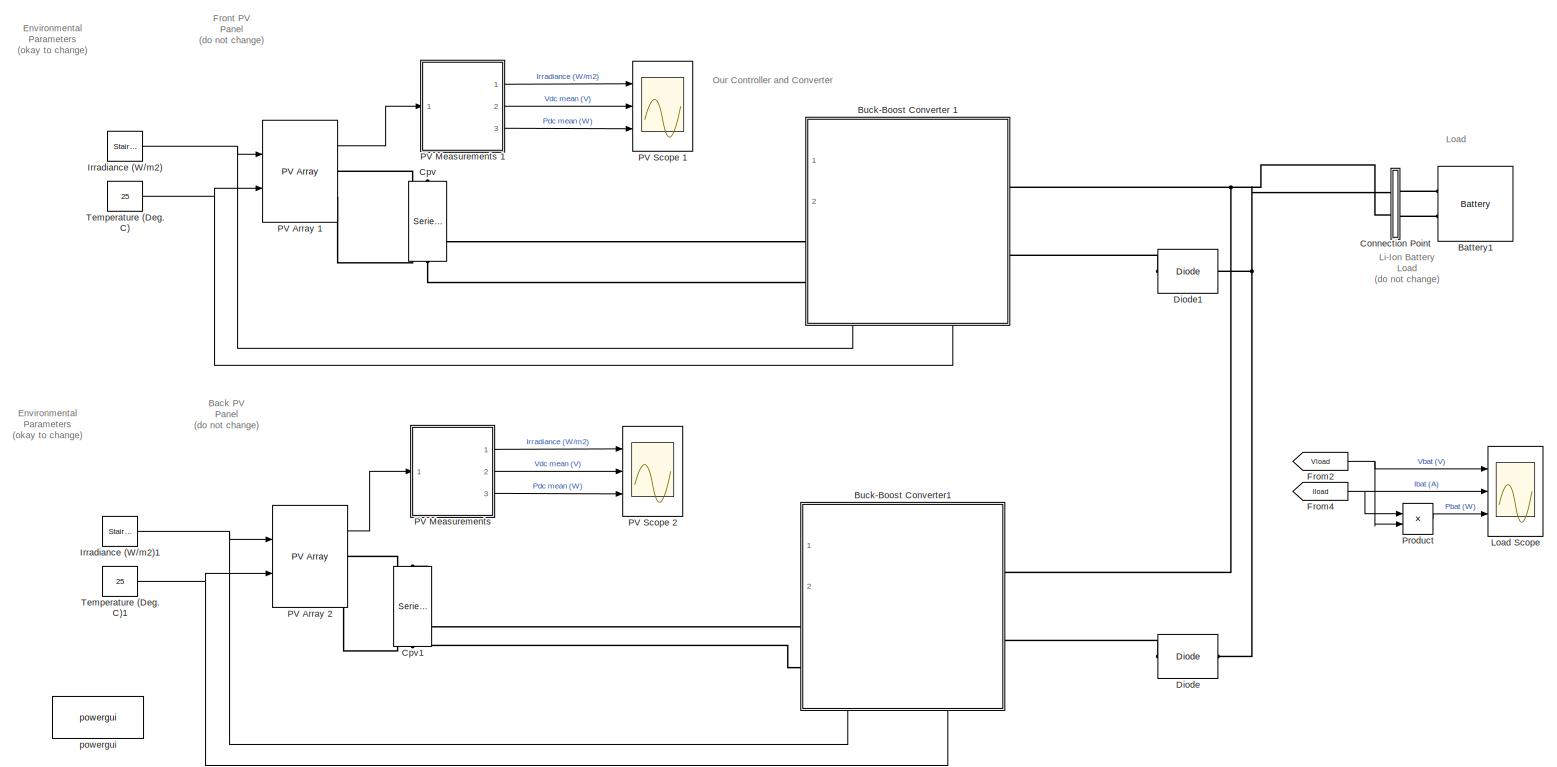
[diagram: root canvas - part 1/1, most of the canvas]
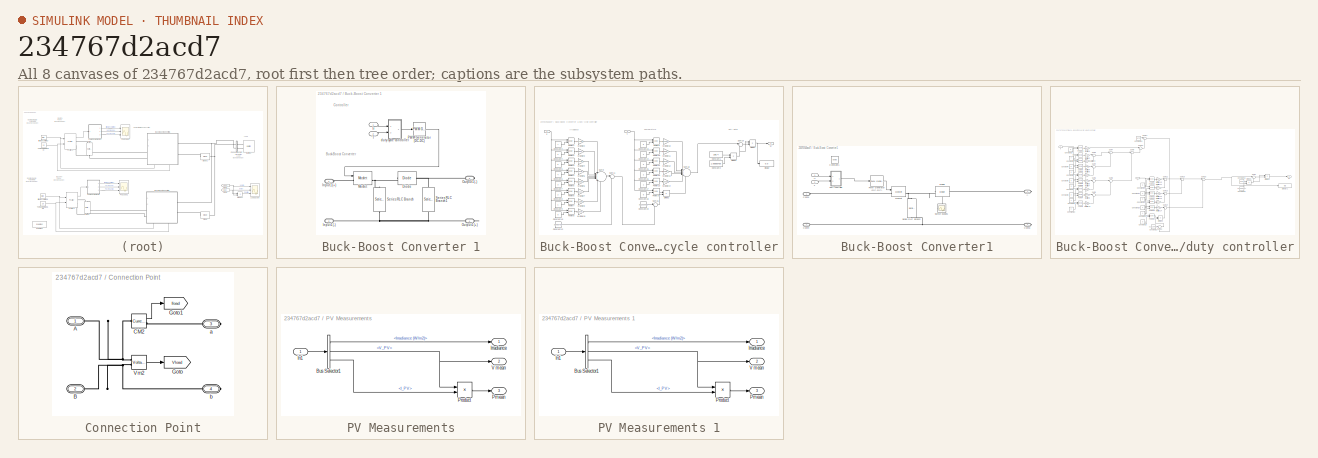
[diagram: thumbnail index - all 8 canvases of the model, root first then tree order]
MODEL slx_234767d2acd7
KIND model
CONFIG AbsTol = auto
CONFIG EnableMultiTasking = off
CONFIG FixedStep = auto
CONFIG InitFcn = %\nFc=3780;                          % PWM Carrier frequency (Hz) \nTs_Power=1/Fc/200;         % Simscape Power Systems sample time (s)\nTs_Control=20*Ts_Power;  % Inverter Control system sample time (s)
CONFIG MaxStep = auto
CONFIG MinStep = auto
CONFIG PreLoadFcn = %\nFc=3780;                          % PWM Carrier frequency (Hz) \nTs_Power=1/Fc/200;         % Simscape Power Systems sample time (s)\nTs_Control=20*Ts_Power;  % Inverter Control system sample time (s)
CONFIG RelTol = 1e-3
CONFIG SampleTimeConstraint = Unconstrained
CONFIG SolverName = FixedStepDiscrete
CONFIG StartTime = 0.0
CONFIG StopTime = 0.25
BLOCK [Reference] Battery1  REF=spsBatteryLib/Battery
  Ports = [0, 1, 0, 0, 0, 2]
  SourceBlock = spsBatteryLib/Battery
  SourceProductBaseCode = PS
  SourceType = Battery
BLOCK [SubSystem] Buck-Boost Converter 1
  PortSchema = {"entries":[{"content":{"sides":[{"content":{"connectorIds":["LConn1","LConn2"]},"type":"ConnectorPlacement.EquallySpacedRectSide","uuid":"71107f47-ce51-452e-9179-51f8038779c5"},{"content":{"connectorIds":["RConn1","RConn2"],"side":"RIGHT"},"type":"ConnectorPlacement.EquallySpacedRectSide","uuid":"312b1ac5-e0b8-4246-b858-aa3db1d4ff4c"},{"content":{"connectorIds":[],"side":"TOP"},"type":"ConnectorP...<+418ch>
  Ports = [2, 0, 0, 0, 0, 2, 2]
  RequestExecContextInheritance = off
BLOCK [Reference] Buck-Boost Converter 1/Diode  REF=spsDiodeLib/Diode
  NameLocation = top
  Ports = [0, 0, 0, 0, 0, 1, 1]
  SourceBlock = spsDiodeLib/Diode
  SourceProductBaseCode = PS
  SourceType = Diode
BLOCK [PMIOPort] Buck-Boost Converter 1/Input1(+)
  Side = Left
BLOCK [PMIOPort] Buck-Boost Converter 1/Input1(-)
  Port = 2
  Side = Left
BLOCK [Inport] Buck-Boost Converter 1/Ir
BLOCK [Reference] Buck-Boost Converter 1/Mosfet  REF=spsMosfetLib/Mosfet
  Ports = [1, 1, 0, 0, 0, 1, 1]
  SourceBlock = spsMosfetLib/Mosfet
  SourceProductBaseCode = PS
  SourceType = Mosfet
BLOCK [PMIOPort] Buck-Boost Converter 1/Output1(+)
  Port = 4
  Side = Right
BLOCK [PMIOPort] Buck-Boost Converter 1/Output1(-)
  Port = 3
  Side = Right
BLOCK [Reference] Buck-Boost Converter 1/PWM Generator (DC-DC)  REF=spsPWMGeneratorDCDCLib/PWM Generator
(DC-DC)
  NameLocation = top
  Ports = [1, 1]
  SourceBlock = spsPWMGeneratorDCDCLib/PWM Generator\n(DC-DC)
  SourceProductBaseCode = PS
  SourceType = PWM Generator (DC-DC)
BLOCK [Reference] Buck-Boost Converter 1/Series RLC Branch  REF=spsSeriesRLCBranchLib/Series RLC Branch
  NameLocation = left
  Ports = [0, 0, 0, 0, 0, 1, 1]
  SourceBlock = spsSeriesRLCBranchLib/Series RLC Branch
  SourceProductBaseCode = PS
  SourceType = Series RLC Branch
BLOCK [Reference] Buck-Boost Converter 1/Series RLC Branch1  REF=spsSeriesRLCBranchLib/Series RLC Branch
  NameLocation = right
  Ports = [0, 0, 0, 0, 0, 1, 1]
  SourceBlock = spsSeriesRLCBranchLib/Series RLC Branch
  SourceProductBaseCode = PS
  SourceType = Series RLC Branch
BLOCK [Inport] Buck-Boost Converter 1/T
  Port = 2
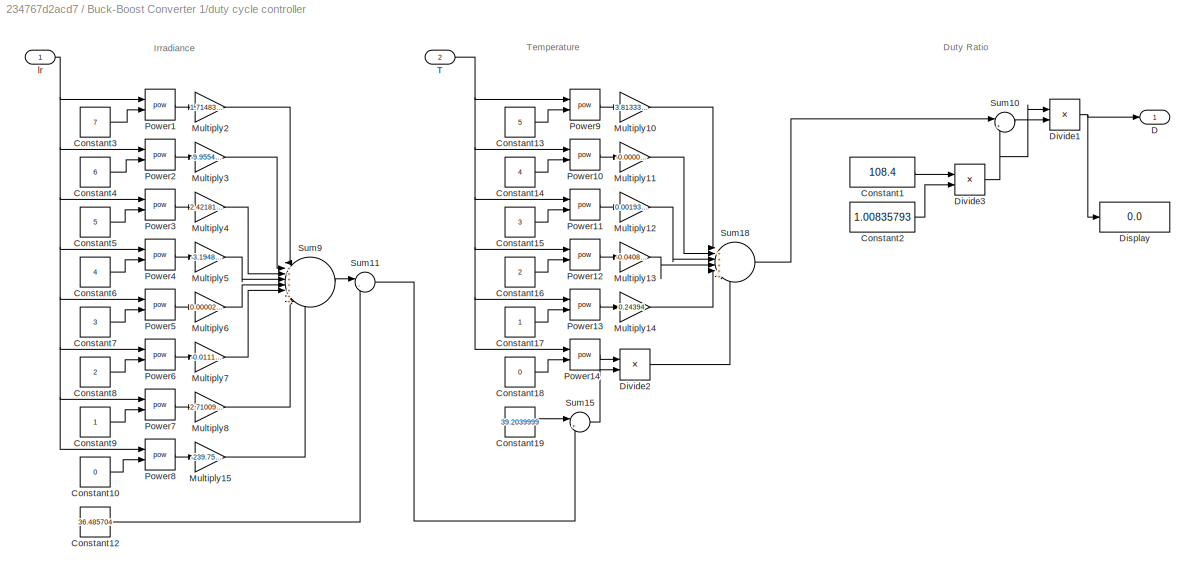
BLOCK [SubSystem] Buck-Boost Converter 1/duty cycle controller
  Ports = [2, 1]
  RequestExecContextInheritance = off
BLOCK [Constant] Buck-Boost Converter 1/duty cycle controller/Constant1
  Value = 108.4
BLOCK [Constant] Buck-Boost Converter 1/duty cycle controller/Constant10
  Value = 0
BLOCK [Constant] Buck-Boost Converter 1/duty cycle controller/Constant12
  Value = 36.485704
BLOCK [Constant] Buck-Boost Converter 1/duty cycle controller/Constant13
  Value = 5
BLOCK [Constant] Buck-Boost Converter 1/duty cycle controller/Constant14
  Value = 4
BLOCK [Constant] Buck-Boost Converter 1/duty cycle controller/Constant15
  Value = 3
BLOCK [Constant] Buck-Boost Converter 1/duty cycle controller/Constant16
  Value = 2
BLOCK [Constant] Buck-Boost Converter 1/duty cycle controller/Constant17
BLOCK [Constant] Buck-Boost Converter 1/duty cycle controller/Constant18
  Value = 0
BLOCK [Constant] Buck-Boost Converter 1/duty cycle controller/Constant19
  Value = 39.2039999
BLOCK [Constant] Buck-Boost Converter 1/duty cycle controller/Constant2
  Value = 1.00835793
BLOCK [Constant] Buck-Boost Converter 1/duty cycle controller/Constant3
  Value = 7
BLOCK [Constant] Buck-Boost Converter 1/duty cycle controller/Constant4
  Value = 6
BLOCK [Constant] Buck-Boost Converter 1/duty cycle controller/Constant5
  Value = 5
BLOCK [Constant] Buck-Boost Converter 1/duty cycle controller/Constant6
  Value = 4
BLOCK [Constant] Buck-Boost Converter 1/duty cycle controller/Constant7
  Value = 3
BLOCK [Constant] Buck-Boost Converter 1/duty cycle controller/Constant8
  Value = 2
BLOCK [Constant] Buck-Boost Converter 1/duty cycle controller/Constant9
BLOCK [Outport] Buck-Boost Converter 1/duty cycle controller/D
BLOCK [Display] Buck-Boost Converter 1/duty cycle controller/Display
  Decimation = 1
  Ports = [1]
BLOCK [Product] Buck-Boost Converter 1/duty cycle controller/Divide1
  Inputs = */
  Ports = [2, 1]
BLOCK [Product] Buck-Boost Converter 1/duty cycle controller/Divide2
  Inputs = **
  Ports = [2, 1]
BLOCK [Product] Buck-Boost Converter 1/duty cycle controller/Divide3
  Inputs = **
  Ports = [2, 1]
BLOCK [Gain] Buck-Boost Converter 1/duty cycle controller/Multiply10
  Gain = 3.813333333561517e-7
BLOCK [Gain] Buck-Boost Converter 1/duty cycle controller/Multiply11
  Gain = -0.000043706666
BLOCK [Gain] Buck-Boost Converter 1/duty cycle controller/Multiply12
  Gain = 0.0019328666
BLOCK [Gain] Buck-Boost Converter 1/duty cycle controller/Multiply13
  Gain = -0.0408393333
BLOCK [Gain] Buck-Boost Converter 1/duty cycle controller/Multiply14
  Gain = 0.24394
BLOCK [Gain] Buck-Boost Converter 1/duty cycle controller/Multiply15
  Gain = -239.7544000919312
BLOCK [Gain] Buck-Boost Converter 1/duty cycle controller/Multiply2
  Gain = 1.714831350645164e-18
BLOCK [Gain] Buck-Boost Converter 1/duty cycle controller/Multiply3
  Gain = -9.955446435807061e-15
BLOCK [Gain] Buck-Boost Converter 1/duty cycle controller/Multiply4
  Gain = 2.4218185531138314e-11
BLOCK [Gain] Buck-Boost Converter 1/duty cycle controller/Multiply5
  Gain = -3.19486131127553e-8
BLOCK [Gain] Buck-Boost Converter 1/duty cycle controller/Multiply6
  Gain = 0.000024649337506854967
BLOCK [Gain] Buck-Boost Converter 1/duty cycle controller/Multiply7
  Gain = -0.01111215332909094
BLOCK [Gain] Buck-Boost Converter 1/duty cycle controller/Multiply8
  Gain = 2.7100985926790506
BLOCK [Math] Buck-Boost Converter 1/duty cycle controller/Power1
  Operator = pow
  Ports = [2, 1]
BLOCK [Math] Buck-Boost Converter 1/duty cycle controller/Power10
  Operator = pow
  Ports = [2, 1]
BLOCK [Math] Buck-Boost Converter 1/duty cycle controller/Power11
  Operator = pow
  Ports = [2, 1]
BLOCK [Math] Buck-Boost Converter 1/duty cycle controller/Power12
  Operator = pow
  Ports = [2, 1]
BLOCK [Math] Buck-Boost Converter 1/duty cycle controller/Power13
  Operator = pow
  Ports = [2, 1]
BLOCK [Math] Buck-Boost Converter 1/duty cycle controller/Power14
  Operator = pow
  Ports = [2, 1]
BLOCK [Math] Buck-Boost Converter 1/duty cycle controller/Power2
  Operator = pow
  Ports = [2, 1]
BLOCK [Math] Buck-Boost Converter 1/duty cycle controller/Power3
  Operator = pow
  Ports = [2, 1]
BLOCK [Math] Buck-Boost Converter 1/duty cycle controller/Power4
  Operator = pow
  Ports = [2, 1]
BLOCK [Math] Buck-Boost Converter 1/duty cycle controller/Power5
  Operator = pow
  Ports = [2, 1]
BLOCK [Math] Buck-Boost Converter 1/duty cycle controller/Power6
  Operator = pow
  Ports = [2, 1]
BLOCK [Math] Buck-Boost Converter 1/duty cycle controller/Power7
  Operator = pow
  Ports = [2, 1]
BLOCK [Math] Buck-Boost Converter 1/duty cycle controller/Power8
  Operator = pow
  Ports = [2, 1]
BLOCK [Math] Buck-Boost Converter 1/duty cycle controller/Power9
  Operator = pow
  Ports = [2, 1]
BLOCK [Sum] Buck-Boost Converter 1/duty cycle controller/Sum10
  Inputs = |++
  Ports = [2, 1]
BLOCK [Sum] Buck-Boost Converter 1/duty cycle controller/Sum11
  Inputs = |-+
  Ports = [2, 1]
BLOCK [Sum] Buck-Boost Converter 1/duty cycle controller/Sum15
  Inputs = |++
  Ports = [2, 1]
BLOCK [Sum] Buck-Boost Converter 1/duty cycle controller/Sum18
  Inputs = |++++++
  Ports = [6, 1]
BLOCK [Sum] Buck-Boost Converter 1/duty cycle controller/Sum9
  Inputs = |++++++++
  Ports = [8, 1]
BLOCK [Inport] Buck-Boost Converter 1/duty cycle controller/T
  Port = 2
BLOCK [Inport] Buck-Boost Converter 1/duty cycle controller/lr
BLOCK [SubSystem] Buck-Boost Converter1
  PortSchema = {"entries":[{"content":{"sides":[{"content":{"connectorIds":["LConn1","LConn2"]},"type":"ConnectorPlacement.EquallySpacedRectSide","uuid":"540095d8-fdf3-43c7-978a-c607389d9a56"},{"content":{"connectorIds":["RConn1","RConn2"],"side":"RIGHT"},"type":"ConnectorPlacement.EquallySpacedRectSide","uuid":"db44d909-0859-415e-83df-7d00ca326b34"},{"content":{"connectorIds":[],"side":"TOP"},"type":"ConnectorP...<+418ch>
  Ports = [2, 0, 0, 0, 0, 2, 2]
  RequestExecContextInheritance = off
BLOCK [PMIOPort] Buck-Boost Converter1/A
  Port = 3
  Side = Right
BLOCK [PMIOPort] Buck-Boost Converter1/Conn1
  Side = Left
BLOCK [PMIOPort] Buck-Boost Converter1/Conn3
  Port = 4
  Side = Right
BLOCK [PMIOPort] Buck-Boost Converter1/Conn4
  Port = 2
  Side = Left
BLOCK [Constant] Buck-Boost Converter1/Constant1
  Value = 0.786
BLOCK [Reference] Buck-Boost Converter1/Diode  REF=spsDiodeLib/Diode
  NameLocation = top
  Ports = [0, 1, 0, 0, 0, 1, 1]
  SourceBlock = spsDiodeLib/Diode
  SourceProductBaseCode = PS
  SourceType = Diode
BLOCK [Inport] Buck-Boost Converter1/Ir
BLOCK [Reference] Buck-Boost Converter1/Mosfet  REF=spsMosfetLib/Mosfet
  Ports = [1, 1, 0, 0, 0, 1, 1]
  SourceBlock = spsMosfetLib/Mosfet
  SourceProductBaseCode = PS
  SourceType = Mosfet
BLOCK [Reference] Buck-Boost Converter1/PWM Generator (DC-DC)  REF=spsPWMGeneratorDCDCLib/PWM Generator
(DC-DC)
  NameLocation = top
  Ports = [1, 1]
  SourceBlock = spsPWMGeneratorDCDCLib/PWM Generator\n(DC-DC)
  SourceProductBaseCode = PS
  SourceType = PWM Generator (DC-DC)
BLOCK [Reference] Buck-Boost Converter1/Series RLC Branch  REF=spsSeriesRLCBranchLib/Series RLC Branch
  NameLocation = left
  Ports = [0, 0, 0, 0, 0, 1, 1]
  SourceBlock = spsSeriesRLCBranchLib/Series RLC Branch
  SourceProductBaseCode = PS
  SourceType = Series RLC Branch
BLOCK [Scope] Buck-Boost Converter1/Switch Scope1
  Floating = off
  NameLocation = top
  NumInputPorts = 1
  Ports = [1]
  ScopeSpecificationString = Simulink.scopes.TimeScopeBlockCfg('CurrentConfiguration', extmgr.ConfigurationSet(extmgr.Configuration('Core','General UI',true,'FigureColor',[1 1 1]),extmgr.Configuration('Core','Source UI',true),extmgr.Configuration('Sources','WiredSimulink',true,'DataLoggingVariableName','ScopeData1','DataLoggingSaveFormat','StructureWithTime','DataLoggingDecimation','1','DataLoggingDecimateData',true),extmgr.C...<+2740ch>
BLOCK [Inport] Buck-Boost Converter1/T
  Port = 2
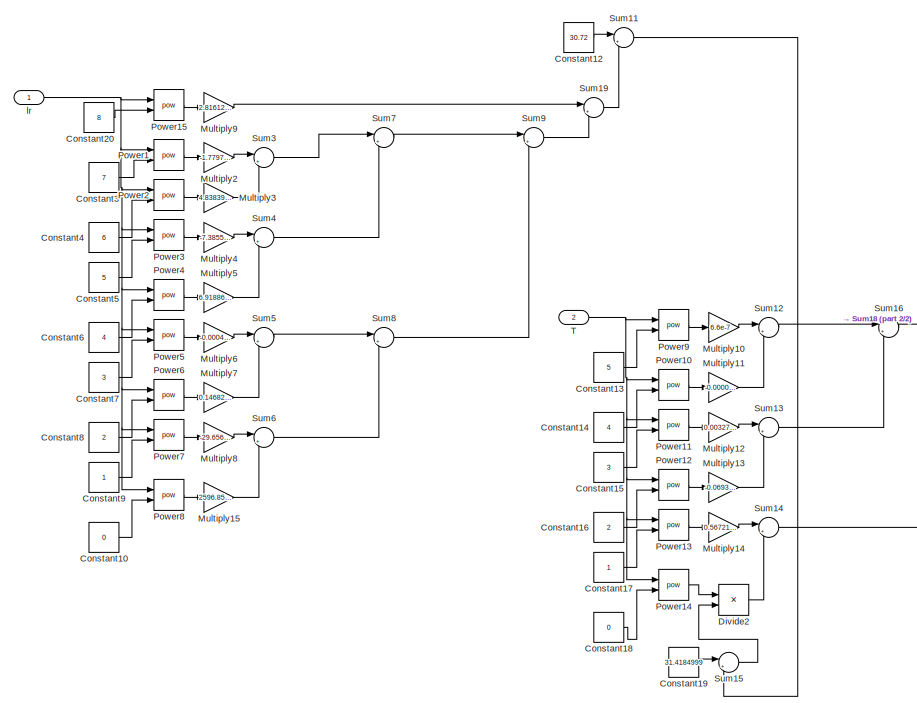
[diagram: Buck-Boost Converter1/duty controller - part 1/2, left side, full height]
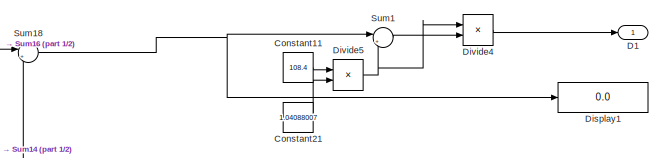
[diagram: Buck-Boost Converter1/duty controller - part 2/2, middle right region]
BLOCK [SubSystem] Buck-Boost Converter1/duty controller
  Ports = [2, 1]
  RequestExecContextInheritance = off
BLOCK [Constant] Buck-Boost Converter1/duty controller/Constant10
  Value = 0
BLOCK [Constant] Buck-Boost Converter1/duty controller/Constant11
  Value = 108.4
BLOCK [Constant] Buck-Boost Converter1/duty controller/Constant12
  Value = 30.72
BLOCK [Constant] Buck-Boost Converter1/duty controller/Constant13
  Value = 5
BLOCK [Constant] Buck-Boost Converter1/duty controller/Constant14
  Value = 4
BLOCK [Constant] Buck-Boost Converter1/duty controller/Constant15
  Value = 3
BLOCK [Constant] Buck-Boost Converter1/duty controller/Constant16
  Value = 2
BLOCK [Constant] Buck-Boost Converter1/duty controller/Constant17
BLOCK [Constant] Buck-Boost Converter1/duty controller/Constant18
  Value = 0
BLOCK [Constant] Buck-Boost Converter1/duty controller/Constant19
  Value = 31.4184999
BLOCK [Constant] Buck-Boost Converter1/duty controller/Constant20
  Value = 8
BLOCK [Constant] Buck-Boost Converter1/duty controller/Constant21
  Value = 1.04088007
BLOCK [Constant] Buck-Boost Converter1/duty controller/Constant3
  Value = 7
BLOCK [Constant] Buck-Boost Converter1/duty controller/Constant4
  Value = 6
BLOCK [Constant] Buck-Boost Converter1/duty controller/Constant5
  Value = 5
BLOCK [Constant] Buck-Boost Converter1/duty controller/Constant6
  Value = 4
BLOCK [Constant] Buck-Boost Converter1/duty controller/Constant7
  Value = 3
BLOCK [Constant] Buck-Boost Converter1/duty controller/Constant8
  Value = 2
BLOCK [Constant] Buck-Boost Converter1/duty controller/Constant9
BLOCK [Outport] Buck-Boost Converter1/duty controller/D1
BLOCK [Display] Buck-Boost Converter1/duty controller/Display1
  Decimation = 1
  Ports = [1]
BLOCK [Product] Buck-Boost Converter1/duty controller/Divide2
  Inputs = **
  Ports = [2, 1]
BLOCK [Product] Buck-Boost Converter1/duty controller/Divide4
  Inputs = */
  Ports = [2, 1]
BLOCK [Product] Buck-Boost Converter1/duty controller/Divide5
  Inputs = **
  Ports = [2, 1]
BLOCK [Gain] Buck-Boost Converter1/duty controller/Multiply10
  Gain = 6.6e-7
BLOCK [Gain] Buck-Boost Converter1/duty controller/Multiply11
  Gain = -0.00007474
BLOCK [Gain] Buck-Boost Converter1/duty controller/Multiply12
  Gain = 0.003276766666
BLOCK [Gain] Buck-Boost Converter1/duty controller/Multiply13
  Gain = -0.0693255
BLOCK [Gain] Buck-Boost Converter1/duty controller/Multiply14
  Gain = 0.5672183333
BLOCK [Gain] Buck-Boost Converter1/duty controller/Multiply15
  Gain = 2596.8559982
BLOCK [Gain] Buck-Boost Converter1/duty controller/Multiply2
  Gain = -1.7797400032375572e-16
BLOCK [Gain] Buck-Boost Converter1/duty controller/Multiply3
  Gain = 4.838394934896409e-13
BLOCK [Gain] Buck-Boost Converter1/duty controller/Multiply4
  Gain = -7.385509831627459e-10
BLOCK [Gain] Buck-Boost Converter1/duty controller/Multiply5
  Gain = 6.91886732327044e-7
BLOCK [Gain] Buck-Boost Converter1/duty controller/Multiply6
  Gain = -0.000407095995673
BLOCK [Gain] Buck-Boost Converter1/duty controller/Multiply7
  Gain = 0.146823719369
BLOCK [Gain] Buck-Boost Converter1/duty controller/Multiply8
  Gain = -29.65631111
BLOCK [Gain] Buck-Boost Converter1/duty controller/Multiply9
  Gain = 2.8161209094057574e-20
BLOCK [Math] Buck-Boost Converter1/duty controller/Power1
  Operator = pow
  Ports = [2, 1]
BLOCK [Math] Buck-Boost Converter1/duty controller/Power10
  Operator = pow
  Ports = [2, 1]
BLOCK [Math] Buck-Boost Converter1/duty controller/Power11
  Operator = pow
  Ports = [2, 1]
BLOCK [Math] Buck-Boost Converter1/duty controller/Power12
  Operator = pow
  Ports = [2, 1]
BLOCK [Math] Buck-Boost Converter1/duty controller/Power13
  Operator = pow
  Ports = [2, 1]
BLOCK [Math] Buck-Boost Converter1/duty controller/Power14
  Operator = pow
  Ports = [2, 1]
BLOCK [Math] Buck-Boost Converter1/duty controller/Power15
  Operator = pow
  Ports = [2, 1]
BLOCK [Math] Buck-Boost Converter1/duty controller/Power2
  Operator = pow
  Ports = [2, 1]
BLOCK [Math] Buck-Boost Converter1/duty controller/Power3
  Operator = pow
  Ports = [2, 1]
BLOCK [Math] Buck-Boost Converter1/duty controller/Power4
  Operator = pow
  Ports = [2, 1]
BLOCK [Math] Buck-Boost Converter1/duty controller/Power5
  Operator = pow
  Ports = [2, 1]
BLOCK [Math] Buck-Boost Converter1/duty controller/Power6
  Operator = pow
  Ports = [2, 1]
BLOCK [Math] Buck-Boost Converter1/duty controller/Power7
  Operator = pow
  Ports = [2, 1]
BLOCK [Math] Buck-Boost Converter1/duty controller/Power8
  Operator = pow
  Ports = [2, 1]
BLOCK [Math] Buck-Boost Converter1/duty controller/Power9
  Operator = pow
  Ports = [2, 1]
BLOCK [Sum] Buck-Boost Converter1/duty controller/Sum1
  Inputs = |++
  Ports = [2, 1]
BLOCK [Sum] Buck-Boost Converter1/duty controller/Sum11
  Inputs = |+-
  Ports = [2, 1]
BLOCK [Sum] Buck-Boost Converter1/duty controller/Sum12
  Inputs = |++
  Ports = [2, 1]
BLOCK [Sum] Buck-Boost Converter1/duty controller/Sum13
  Inputs = |++
  Ports = [2, 1]
BLOCK [Sum] Buck-Boost Converter1/duty controller/Sum14
  Inputs = |++
  Ports = [2, 1]
BLOCK [Sum] Buck-Boost Converter1/duty controller/Sum15
  Inputs = |++
  Ports = [2, 1]
BLOCK [Sum] Buck-Boost Converter1/duty controller/Sum16
  Inputs = |++
  Ports = [2, 1]
BLOCK [Sum] Buck-Boost Converter1/duty controller/Sum18
  Inputs = |++
  Ports = [2, 1]
BLOCK [Sum] Buck-Boost Converter1/duty controller/Sum19
  Inputs = |++
  Ports = [2, 1]
BLOCK [Sum] Buck-Boost Converter1/duty controller/Sum3
  Inputs = |++
  Ports = [2, 1]
BLOCK [Sum] Buck-Boost Converter1/duty controller/Sum4
  Inputs = |++
  Ports = [2, 1]
BLOCK [Sum] Buck-Boost Converter1/duty controller/Sum5
  Inputs = |++
  Ports = [2, 1]
BLOCK [Sum] Buck-Boost Converter1/duty controller/Sum6
  Inputs = |++
  Ports = [2, 1]
BLOCK [Sum] Buck-Boost Converter1/duty controller/Sum7
  Inputs = |++
  Ports = [2, 1]
BLOCK [Sum] Buck-Boost Converter1/duty controller/Sum8
  Inputs = |++
  Ports = [2, 1]
BLOCK [Sum] Buck-Boost Converter1/duty controller/Sum9
  Inputs = |++
  Ports = [2, 1]
BLOCK [Inport] Buck-Boost Converter1/duty controller/T
  Port = 2
BLOCK [Inport] Buck-Boost Converter1/duty controller/lr
BLOCK [SubSystem] Connection Point
  Ports = [0, 0, 0, 0, 0, 2, 2]
  RequestExecContextInheritance = off
BLOCK [PMIOPort] Connection Point/A
  Side = Left
BLOCK [PMIOPort] Connection Point/B
  Port = 2
  Side = Left
BLOCK [Reference] Connection Point/CM2  REF=spsCurrentMeasurementLib/Current Measurement
  Ports = [0, 1, 0, 0, 0, 1, 1]
  SourceBlock = spsCurrentMeasurementLib/Current Measurement
  SourceProductBaseCode = PS
  SourceType = Current Measurement
  UserDataPersistent = on
BLOCK [Goto] Connection Point/Goto
  GotoTag = Vload
  TagVisibility = global
BLOCK [Goto] Connection Point/Goto1
  GotoTag = Iload
  TagVisibility = global
BLOCK [Reference] Connection Point/Vm2  REF=spsVoltageMeasurementLib/Voltage Measurement
  Ports = [0, 1, 0, 0, 0, 2]
  SourceBlock = spsVoltageMeasurementLib/Voltage Measurement
  SourceProductBaseCode = PS
  SourceType = Voltage Measurement
  UserDataPersistent = on
BLOCK [PMIOPort] Connection Point/a
  Port = 3
  Side = Right
BLOCK [PMIOPort] Connection Point/b
  Port = 4
  Side = Right
BLOCK [Reference] Cpv  REF=spsSeriesRLCBranchLib/Series RLC Branch
  NameLocation = right
  Ports = [0, 0, 0, 0, 0, 1, 1]
  SourceBlock = spsSeriesRLCBranchLib/Series RLC Branch
  SourceProductBaseCode = PS
  SourceType = Series RLC Branch
BLOCK [Reference] Cpv1  REF=spsSeriesRLCBranchLib/Series RLC Branch
  NameLocation = right
  Ports = [0, 0, 0, 0, 0, 1, 1]
  SourceBlock = spsSeriesRLCBranchLib/Series RLC Branch
  SourceProductBaseCode = PS
  SourceType = Series RLC Branch
BLOCK [Reference] Diode  REF=spsDiodeLib/Diode
  Ports = [0, 0, 0, 0, 0, 1, 1]
  SourceBlock = spsDiodeLib/Diode
  SourceProductBaseCode = PS
  SourceType = Diode
BLOCK [Reference] Diode1  REF=spsDiodeLib/Diode
  Ports = [0, 0, 0, 0, 0, 1, 1]
  SourceBlock = spsDiodeLib/Diode
  SourceProductBaseCode = PS
  SourceType = Diode
BLOCK [From] From2
  CloseFcn = tagdialog Close
  GotoTag = Vload
  TagVisibility = global
BLOCK [From] From4
  CloseFcn = tagdialog Close
  GotoTag = Iload
  TagVisibility = global
BLOCK [Reference] Irradiance (W//m2)  REF=spsStairGeneratorLib/Stair
Generator
  NameLocation = top
  Ports = [0, 1]
  SourceBlock = spsStairGeneratorLib/Stair\nGenerator
  SourceProductBaseCode = PS
  SourceType = Stair Generator
BLOCK [Reference] Irradiance (W//m2)1  REF=spsStairGeneratorLib/Stair
Generator
  NameLocation = top
  Ports = [0, 1]
  SourceBlock = spsStairGeneratorLib/Stair\nGenerator
  SourceProductBaseCode = PS
  SourceType = Stair Generator
BLOCK [Scope] Load Scope
  Floating = off
  NameLocation = top
  NumInputPorts = 3
  Ports = [3]
  ScopeSpecificationString = Simulink.scopes.TimeScopeBlockCfg('CurrentConfiguration', extmgr.ConfigurationSet(extmgr.Configuration('Core','General UI',true,'FigureColor',[0.501960784313725 0.501960784313725 0.501960784313725]),extmgr.Configuration('Core','Source UI',true),extmgr.Configuration('Sources','WiredSimulink',true,'DataLoggingVariableName','VIgrid','DataLoggingSaveFormat','StructureWithTime','DataLoggingDecimation',...<+3648ch>
BLOCK [Reference] PV Array 1  REF=spsPVArrayLib/PV Array
  AttributesFormatString = %<ModuleName>\n%<Nser>-module string\n%<Npar> parallel strings
  Ports = [2, 1, 0, 0, 0, 0, 2]
  SourceBlock = spsPVArrayLib/PV Array
  SourceProductBaseCode = PS
  SourceType = PV array
BLOCK [Reference] PV Array 2  REF=spsPVArrayLib/PV Array
  AttributesFormatString = %<ModuleName>\n%<Nser>-module string\n%<Npar> parallel strings
  Ports = [2, 1, 0, 0, 0, 0, 2]
  SourceBlock = spsPVArrayLib/PV Array
  SourceProductBaseCode = PS
  SourceType = PV array
BLOCK [SubSystem] PV Measurements
  Ports = [1, 3]
  RequestExecContextInheritance = off
BLOCK [SubSystem] PV Measurements 1
  Ports = [1, 3]
  RequestExecContextInheritance = off
BLOCK [BusSelector] PV Measurements 1/Bus Selector1
  OutputSignals = Irradiance (W/m2),V_PV,I_PV
  Ports = [1, 3]
BLOCK [Inport] PV Measurements 1/In1
BLOCK [Outport] PV Measurements 1/Irradiance
  VectorParamsAs1DForOutWhenUnconnected = off
BLOCK [Outport] PV Measurements 1/Pmean
  Port = 3
  VectorParamsAs1DForOutWhenUnconnected = off
BLOCK [Product] PV Measurements 1/Product
  Ports = [2, 1]
BLOCK [Outport] PV Measurements 1/V mean
  Port = 2
  VectorParamsAs1DForOutWhenUnconnected = off
BLOCK [BusSelector] PV Measurements/Bus Selector1
  OutputSignals = Irradiance (W/m2),V_PV,I_PV
  Ports = [1, 3]
BLOCK [Inport] PV Measurements/In1
BLOCK [Outport] PV Measurements/Irradiance
  VectorParamsAs1DForOutWhenUnconnected = off
BLOCK [Outport] PV Measurements/Pmean
  Port = 3
  VectorParamsAs1DForOutWhenUnconnected = off
BLOCK [Product] PV Measurements/Product
  Ports = [2, 1]
BLOCK [Outport] PV Measurements/V mean
  Port = 2
  VectorParamsAs1DForOutWhenUnconnected = off
BLOCK [Scope] PV Scope 1
  Floating = off
  NameLocation = top
  NumInputPorts = 3
  Ports = [3]
  ScopeSpecificationString = Simulink.scopes.TimeScopeBlockCfg('CurrentConfiguration', extmgr.ConfigurationSet(extmgr.Configuration('Core','General UI',true,'FigureColor',[0.501960784313725 0.501960784313725 0.501960784313725]),extmgr.Configuration('Core','Source UI',true),extmgr.Configuration('Sources','WiredSimulink',true,'DataLoggingVariableName','ScopeData1','DataLoggingSaveFormat','StructureWithTime','DataLoggingDecimati...<+3674ch>
BLOCK [Scope] PV Scope 2
  Floating = off
  NameLocation = top
  NumInputPorts = 3
  Ports = [3]
  ScopeSpecificationString = Simulink.scopes.TimeScopeBlockCfg('CurrentConfiguration', extmgr.ConfigurationSet(extmgr.Configuration('Core','General UI',true,'FigureColor',[0.501960784313725 0.501960784313725 0.501960784313725]),extmgr.Configuration('Core','Source UI',true),extmgr.Configuration('Sources','WiredSimulink',true,'DataLoggingVariableName','ScopeData1','DataLoggingSaveFormat','StructureWithTime','DataLoggingDecimati...<+3660ch>
BLOCK [Product] Product
  Ports = [2, 1]
BLOCK [Constant] Temperature (Deg. C)
  Value = 25
BLOCK [Constant] Temperature (Deg. C)1
  Value = 25
BLOCK [Reference] powergui  REF=spspowerguiLib/powergui
  Ports = []
  Priority = 1
  SourceBlock = spspowerguiLib/powergui
  SourceProductBaseCode = PS
  SourceType = PSB option menu block
ANNOTATION (root): Load
ANNOTATION (root): Back PV Panel (do not change)
ANNOTATION (root): Front PV Panel (do not change)
ANNOTATION (root): Li-Ion Battery Load (do not change)
ANNOTATION (root): Our Controller and Converter
ANNOTATION (root): Environmental Parameters (okay to change)
ANNOTATION Buck-Boost Converter 1: Buck-Boost Converter
ANNOTATION Buck-Boost Converter 1: Controller
ANNOTATION Buck-Boost Converter 1/duty cycle controller: Duty Ratio
ANNOTATION Buck-Boost Converter 1/duty cycle controller: Irradiance
ANNOTATION Buck-Boost Converter 1/duty cycle controller: Temperature
LINE Buck-Boost Converter 1/Ir:1 -> Buck-Boost Converter 1/duty cycle controller:1
LINE Buck-Boost Converter 1/PWM Generator (DC-DC):1 -> Buck-Boost Converter 1/Mosfet:1
LINE Buck-Boost Converter 1/T:1 -> Buck-Boost Converter 1/duty cycle controller:2
LINE Buck-Boost Converter 1/duty cycle controller/Constant10:1 -> Buck-Boost Converter 1/duty cycle controller/Power8:2
LINE Buck-Boost Converter 1/duty cycle controller/Constant12:1 -> Buck-Boost Converter 1/duty cycle controller/Sum11:2
LINE Buck-Boost Converter 1/duty cycle controller/Constant13:1 -> Buck-Boost Converter 1/duty cycle controller/Power9:2
LINE Buck-Boost Converter 1/duty cycle controller/Constant14:1 -> Buck-Boost Converter 1/duty cycle controller/Power10:2
LINE Buck-Boost Converter 1/duty cycle controller/Constant15:1 -> Buck-Boost Converter 1/duty cycle controller/Power11:2
LINE Buck-Boost Converter 1/duty cycle controller/Constant16:1 -> Buck-Boost Converter 1/duty cycle controller/Power12:2
LINE Buck-Boost Converter 1/duty cycle controller/Constant17:1 -> Buck-Boost Converter 1/duty cycle controller/Power13:2
LINE Buck-Boost Converter 1/duty cycle controller/Constant18:1 -> Buck-Boost Converter 1/duty cycle controller/Power14:2
LINE Buck-Boost Converter 1/duty cycle controller/Constant19:1 -> Buck-Boost Converter 1/duty cycle controller/Sum15:1
LINE Buck-Boost Converter 1/duty cycle controller/Constant1:1 -> Buck-Boost Converter 1/duty cycle controller/Divide3:1
LINE Buck-Boost Converter 1/duty cycle controller/Constant2:1 -> Buck-Boost Converter 1/duty cycle controller/Divide3:2
LINE Buck-Boost Converter 1/duty cycle controller/Constant3:1 -> Buck-Boost Converter 1/duty cycle controller/Power1:2
LINE Buck-Boost Converter 1/duty cycle controller/Constant4:1 -> Buck-Boost Converter 1/duty cycle controller/Power2:2
LINE Buck-Boost Converter 1/duty cycle controller/Constant5:1 -> Buck-Boost Converter 1/duty cycle controller/Power3:2
LINE Buck-Boost Converter 1/duty cycle controller/Constant6:1 -> Buck-Boost Converter 1/duty cycle controller/Power4:2
LINE Buck-Boost Converter 1/duty cycle controller/Constant7:1 -> Buck-Boost Converter 1/duty cycle controller/Power5:2
LINE Buck-Boost Converter 1/duty cycle controller/Constant8:1 -> Buck-Boost Converter 1/duty cycle controller/Power6:2
LINE Buck-Boost Converter 1/duty cycle controller/Constant9:1 -> Buck-Boost Converter 1/duty cycle controller/Power7:2
NET Buck-Boost Converter 1/duty cycle controller/Divide1:1 -> Buck-Boost Converter 1/duty cycle controller/D:1, Buck-Boost Converter 1/duty cycle controller/Display:1
LINE Buck-Boost Converter 1/duty cycle controller/Divide2:1 -> Buck-Boost Converter 1/duty cycle controller/Sum18:6
NET Buck-Boost Converter 1/duty cycle controller/Divide3:1 -> Buck-Boost Converter 1/duty cycle controller/Divide1:1, Buck-Boost Converter 1/duty cycle controller/Sum10:2
LINE Buck-Boost Converter 1/duty cycle controller/Multiply10:1 -> Buck-Boost Converter 1/duty cycle controller/Sum18:1
LINE Buck-Boost Converter 1/duty cycle controller/Multiply11:1 -> Buck-Boost Converter 1/duty cycle controller/Sum18:2
LINE Buck-Boost Converter 1/duty cycle controller/Multiply12:1 -> Buck-Boost Converter 1/duty cycle controller/Sum18:3
LINE Buck-Boost Converter 1/duty cycle controller/Multiply13:1 -> Buck-Boost Converter 1/duty cycle controller/Sum18:4
LINE Buck-Boost Converter 1/duty cycle controller/Multiply14:1 -> Buck-Boost Converter 1/duty cycle controller/Sum18:5
LINE Buck-Boost Converter 1/duty cycle controller/Multiply15:1 -> Buck-Boost Converter 1/duty cycle controller/Sum9:8
LINE Buck-Boost Converter 1/duty cycle controller/Multiply2:1 -> Buck-Boost Converter 1/duty cycle controller/Sum9:1
LINE Buck-Boost Converter 1/duty cycle controller/Multiply3:1 -> Buck-Boost Converter 1/duty cycle controller/Sum9:2
LINE Buck-Boost Converter 1/duty cycle controller/Multiply4:1 -> Buck-Boost Converter 1/duty cycle controller/Sum9:3
LINE Buck-Boost Converter 1/duty cycle controller/Multiply5:1 -> Buck-Boost Converter 1/duty cycle controller/Sum9:4
LINE Buck-Boost Converter 1/duty cycle controller/Multiply6:1 -> Buck-Boost Converter 1/duty cycle controller/Sum9:5
LINE Buck-Boost Converter 1/duty cycle controller/Multiply7:1 -> Buck-Boost Converter 1/duty cycle controller/Sum9:6
LINE Buck-Boost Converter 1/duty cycle controller/Multiply8:1 -> Buck-Boost Converter 1/duty cycle controller/Sum9:7
LINE Buck-Boost Converter 1/duty cycle controller/Power10:1 -> Buck-Boost Converter 1/duty cycle controller/Multiply11:1
LINE Buck-Boost Converter 1/duty cycle controller/Power11:1 -> Buck-Boost Converter 1/duty cycle controller/Multiply12:1
LINE Buck-Boost Converter 1/duty cycle controller/Power12:1 -> Buck-Boost Converter 1/duty cycle controller/Multiply13:1
LINE Buck-Boost Converter 1/duty cycle controller/Power13:1 -> Buck-Boost Converter 1/duty cycle controller/Multiply14:1
LINE Buck-Boost Converter 1/duty cycle controller/Power14:1 -> Buck-Boost Converter 1/duty cycle controller/Divide2:1
LINE Buck-Boost Converter 1/duty cycle controller/Power1:1 -> Buck-Boost Converter 1/duty cycle controller/Multiply2:1
LINE Buck-Boost Converter 1/duty cycle controller/Power2:1 -> Buck-Boost Converter 1/duty cycle controller/Multiply3:1
LINE Buck-Boost Converter 1/duty cycle controller/Power3:1 -> Buck-Boost Converter 1/duty cycle controller/Multiply4:1
LINE Buck-Boost Converter 1/duty cycle controller/Power4:1 -> Buck-Boost Converter 1/duty cycle controller/Multiply5:1
LINE Buck-Boost Converter 1/duty cycle controller/Power5:1 -> Buck-Boost Converter 1/duty cycle controller/Multiply6:1
LINE Buck-Boost Converter 1/duty cycle controller/Power6:1 -> Buck-Boost Converter 1/duty cycle controller/Multiply7:1
LINE Buck-Boost Converter 1/duty cycle controller/Power7:1 -> Buck-Boost Converter 1/duty cycle controller/Multiply8:1
LINE Buck-Boost Converter 1/duty cycle controller/Power8:1 -> Buck-Boost Converter 1/duty cycle controller/Multiply15:1
LINE Buck-Boost Converter 1/duty cycle controller/Power9:1 -> Buck-Boost Converter 1/duty cycle controller/Multiply10:1
LINE Buck-Boost Converter 1/duty cycle controller/Sum10:1 -> Buck-Boost Converter 1/duty cycle controller/Divide1:2
LINE Buck-Boost Converter 1/duty cycle controller/Sum11:1 -> Buck-Boost Converter 1/duty cycle controller/Sum15:2
LINE Buck-Boost Converter 1/duty cycle controller/Sum15:1 -> Buck-Boost Converter 1/duty cycle controller/Divide2:2
LINE Buck-Boost Converter 1/duty cycle controller/Sum18:1 -> Buck-Boost Converter 1/duty cycle controller/Sum10:1
LINE Buck-Boost Converter 1/duty cycle controller/Sum9:1 -> Buck-Boost Converter 1/duty cycle controller/Sum11:1
NET Buck-Boost Converter 1/duty cycle controller/T:1 -> Buck-Boost Converter 1/duty cycle controller/Power10:1, Buck-Boost Converter 1/duty cycle controller/Power11:1, Buck-Boost Converter 1/duty cycle controller/Power12:1, Buck-Boost Converter 1/duty cycle controller/Power13:1, Buck-Boost Converter 1/duty cycle controller/Power14:1, Buck-Boost Converter 1/duty cycle controller/Power9:1
NET Buck-Boost Converter 1/duty cycle controller/lr:1 -> Buck-Boost Converter 1/duty cycle controller/Power1:1, Buck-Boost Converter 1/duty cycle controller/Power2:1, Buck-Boost Converter 1/duty cycle controller/Power3:1, Buck-Boost Converter 1/duty cycle controller/Power4:1, Buck-Boost Converter 1/duty cycle controller/Power5:1, Buck-Boost Converter 1/duty cycle controller/Power6:1, Buck-Boost Converter 1/duty cycle controller/Power7:1, Buck-Boost Converter 1/duty cycle controller/Power8:1
LINE Buck-Boost Converter 1/duty cycle controller:1 -> Buck-Boost Converter 1/PWM Generator (DC-DC):1
LINE Buck-Boost Converter1/Diode:1 -> Buck-Boost Converter1/Switch Scope1:1
LINE Buck-Boost Converter1/Ir:1 -> Buck-Boost Converter1/duty controller:1
LINE Buck-Boost Converter1/PWM Generator (DC-DC):1 -> Buck-Boost Converter1/Mosfet:1
LINE Buck-Boost Converter1/T:1 -> Buck-Boost Converter1/duty controller:2
LINE Buck-Boost Converter1/duty controller/Constant10:1 -> Buck-Boost Converter1/duty controller/Power8:2
LINE Buck-Boost Converter1/duty controller/Constant11:1 -> Buck-Boost Converter1/duty controller/Divide5:1
LINE Buck-Boost Converter1/duty controller/Constant12:1 -> Buck-Boost Converter1/duty controller/Sum11:1
LINE Buck-Boost Converter1/duty controller/Constant13:1 -> Buck-Boost Converter1/duty controller/Power9:2
LINE Buck-Boost Converter1/duty controller/Constant14:1 -> Buck-Boost Converter1/duty controller/Power10:2
LINE Buck-Boost Converter1/duty controller/Constant15:1 -> Buck-Boost Converter1/duty controller/Power11:2
LINE Buck-Boost Converter1/duty controller/Constant16:1 -> Buck-Boost Converter1/duty controller/Power12:2
LINE Buck-Boost Converter1/duty controller/Constant17:1 -> Buck-Boost Converter1/duty controller/Power13:2
LINE Buck-Boost Converter1/duty controller/Constant18:1 -> Buck-Boost Converter1/duty controller/Power14:2
LINE Buck-Boost Converter1/duty controller/Constant19:1 -> Buck-Boost Converter1/duty controller/Sum15:1
LINE Buck-Boost Converter1/duty controller/Constant20:1 -> Buck-Boost Converter1/duty controller/Power15:2
LINE Buck-Boost Converter1/duty controller/Constant21:1 -> Buck-Boost Converter1/duty controller/Divide5:2
LINE Buck-Boost Converter1/duty controller/Constant3:1 -> Buck-Boost Converter1/duty controller/Power1:2
LINE Buck-Boost Converter1/duty controller/Constant4:1 -> Buck-Boost Converter1/duty controller/Power2:2
LINE Buck-Boost Converter1/duty controller/Constant5:1 -> Buck-Boost Converter1/duty controller/Power3:2
LINE Buck-Boost Converter1/duty controller/Constant6:1 -> Buck-Boost Converter1/duty controller/Power4:2
LINE Buck-Boost Converter1/duty controller/Constant7:1 -> Buck-Boost Converter1/duty controller/Power5:2
LINE Buck-Boost Converter1/duty controller/Constant8:1 -> Buck-Boost Converter1/duty controller/Power6:2
LINE Buck-Boost Converter1/duty controller/Constant9:1 -> Buck-Boost Converter1/duty controller/Power7:2
LINE Buck-Boost Converter1/duty controller/Divide2:1 -> Buck-Boost Converter1/duty controller/Sum14:2
LINE Buck-Boost Converter1/duty controller/Divide4:1 -> Buck-Boost Converter1/duty controller/D1:1
NET Buck-Boost Converter1/duty controller/Divide5:1 -> Buck-Boost Converter1/duty controller/Divide4:1, Buck-Boost Converter1/duty controller/Sum1:2
LINE Buck-Boost Converter1/duty controller/Multiply10:1 -> Buck-Boost Converter1/duty controller/Sum12:1
LINE Buck-Boost Converter1/duty controller/Multiply11:1 -> Buck-Boost Converter1/duty controller/Sum12:2
LINE Buck-Boost Converter1/duty controller/Multiply12:1 -> Buck-Boost Converter1/duty controller/Sum13:1
LINE Buck-Boost Converter1/duty controller/Multiply13:1 -> Buck-Boost Converter1/duty controller/Sum13:2
LINE Buck-Boost Converter1/duty controller/Multiply14:1 -> Buck-Boost Converter1/duty controller/Sum14:1
LINE Buck-Boost Converter1/duty controller/Multiply15:1 -> Buck-Boost Converter1/duty controller/Sum6:2
LINE Buck-Boost Converter1/duty controller/Multiply2:1 -> Buck-Boost Converter1/duty controller/Sum3:1
LINE Buck-Boost Converter1/duty controller/Multiply3:1 -> Buck-Boost Converter1/duty controller/Sum3:2
LINE Buck-Boost Converter1/duty controller/Multiply4:1 -> Buck-Boost Converter1/duty controller/Sum4:1
LINE Buck-Boost Converter1/duty controller/Multiply5:1 -> Buck-Boost Converter1/duty controller/Sum4:2
LINE Buck-Boost Converter1/duty controller/Multiply6:1 -> Buck-Boost Converter1/duty controller/Sum5:1
LINE Buck-Boost Converter1/duty controller/Multiply7:1 -> Buck-Boost Converter1/duty controller/Sum5:2
LINE Buck-Boost Converter1/duty controller/Multiply8:1 -> Buck-Boost Converter1/duty controller/Sum6:1
LINE Buck-Boost Converter1/duty controller/Multiply9:1 -> Buck-Boost Converter1/duty controller/Sum19:1
LINE Buck-Boost Converter1/duty controller/Power10:1 -> Buck-Boost Converter1/duty controller/Multiply11:1
LINE Buck-Boost Converter1/duty controller/Power11:1 -> Buck-Boost Converter1/duty controller/Multiply12:1
LINE Buck-Boost Converter1/duty controller/Power12:1 -> Buck-Boost Converter1/duty controller/Multiply13:1
LINE Buck-Boost Converter1/duty controller/Power13:1 -> Buck-Boost Converter1/duty controller/Multiply14:1
LINE Buck-Boost Converter1/duty controller/Power14:1 -> Buck-Boost Converter1/duty controller/Divide2:1
LINE Buck-Boost Converter1/duty controller/Power15:1 -> Buck-Boost Converter1/duty controller/Multiply9:1
LINE Buck-Boost Converter1/duty controller/Power1:1 -> Buck-Boost Converter1/duty controller/Multiply2:1
LINE Buck-Boost Converter1/duty controller/Power2:1 -> Buck-Boost Converter1/duty controller/Multiply3:1
LINE Buck-Boost Converter1/duty controller/Power3:1 -> Buck-Boost Converter1/duty controller/Multiply4:1
LINE Buck-Boost Converter1/duty controller/Power4:1 -> Buck-Boost Converter1/duty controller/Multiply5:1
LINE Buck-Boost Converter1/duty controller/Power5:1 -> Buck-Boost Converter1/duty controller/Multiply6:1
LINE Buck-Boost Converter1/duty controller/Power6:1 -> Buck-Boost Converter1/duty controller/Multiply7:1
LINE Buck-Boost Converter1/duty controller/Power7:1 -> Buck-Boost Converter1/duty controller/Multiply8:1
LINE Buck-Boost Converter1/duty controller/Power8:1 -> Buck-Boost Converter1/duty controller/Multiply15:1
LINE Buck-Boost Converter1/duty controller/Power9:1 -> Buck-Boost Converter1/duty controller/Multiply10:1
LINE Buck-Boost Converter1/duty controller/Sum11:1 -> Buck-Boost Converter1/duty controller/Sum15:2
LINE Buck-Boost Converter1/duty controller/Sum12:1 -> Buck-Boost Converter1/duty controller/Sum16:1
LINE Buck-Boost Converter1/duty controller/Sum13:1 -> Buck-Boost Converter1/duty controller/Sum16:2
LINE Buck-Boost Converter1/duty controller/Sum14:1 -> Buck-Boost Converter1/duty controller/Sum18:2
LINE Buck-Boost Converter1/duty controller/Sum15:1 -> Buck-Boost Converter1/duty controller/Divide2:2
LINE Buck-Boost Converter1/duty controller/Sum16:1 -> Buck-Boost Converter1/duty controller/Sum18:1
NET Buck-Boost Converter1/duty controller/Sum18:1 -> Buck-Boost Converter1/duty controller/Display1:1, Buck-Boost Converter1/duty controller/Sum1:1
LINE Buck-Boost Converter1/duty controller/Sum19:1 -> Buck-Boost Converter1/duty controller/Sum11:2
LINE Buck-Boost Converter1/duty controller/Sum1:1 -> Buck-Boost Converter1/duty controller/Divide4:2
LINE Buck-Boost Converter1/duty controller/Sum3:1 -> Buck-Boost Converter1/duty controller/Sum7:1
LINE Buck-Boost Converter1/duty controller/Sum4:1 -> Buck-Boost Converter1/duty controller/Sum7:2
LINE Buck-Boost Converter1/duty controller/Sum5:1 -> Buck-Boost Converter1/duty controller/Sum8:1
LINE Buck-Boost Converter1/duty controller/Sum6:1 -> Buck-Boost Converter1/duty controller/Sum8:2
LINE Buck-Boost Converter1/duty controller/Sum7:1 -> Buck-Boost Converter1/duty controller/Sum9:1
LINE Buck-Boost Converter1/duty controller/Sum8:1 -> Buck-Boost Converter1/duty controller/Sum9:2
LINE Buck-Boost Converter1/duty controller/Sum9:1 -> Buck-Boost Converter1/duty controller/Sum19:2
NET Buck-Boost Converter1/duty controller/T:1 -> Buck-Boost Converter1/duty controller/Power10:1, Buck-Boost Converter1/duty controller/Power11:1, Buck-Boost Converter1/duty controller/Power12:1, Buck-Boost Converter1/duty controller/Power13:1, Buck-Boost Converter1/duty controller/Power14:1, Buck-Boost Converter1/duty controller/Power9:1
NET Buck-Boost Converter1/duty controller/lr:1 -> Buck-Boost Converter1/duty controller/Power15:1, Buck-Boost Converter1/duty controller/Power1:1, Buck-Boost Converter1/duty controller/Power2:1, Buck-Boost Converter1/duty controller/Power3:1, Buck-Boost Converter1/duty controller/Power4:1, Buck-Boost Converter1/duty controller/Power5:1, Buck-Boost Converter1/duty controller/Power6:1, Buck-Boost Converter1/duty controller/Power7:1, Buck-Boost Converter1/duty controller/Power8:1
LINE Buck-Boost Converter1/duty controller:1 -> Buck-Boost Converter1/PWM Generator (DC-DC):1
LINE Connection Point/CM2:1 -> Connection Point/Goto1:1
LINE Connection Point/Vm2:1 -> Connection Point/Goto:1
NET From2:1 -> Load Scope:1, Product:2
NET From4:1 -> Load Scope:2, Product:1
NET Irradiance (W//m2)1:1 -> Buck-Boost Converter1:1, PV Array 2:1
NET Irradiance (W//m2):1 -> Buck-Boost Converter 1:1, PV Array 1:1
LINE PV Array 1:1 -> PV Measurements 1:1
LINE PV Array 2:1 -> PV Measurements:1
LINE PV Measurements 1/Bus Selector1:1 -> PV Measurements 1/Irradiance:1
NET PV Measurements 1/Bus Selector1:2 -> PV Measurements 1/Product:1, PV Measurements 1/V mean:1
LINE PV Measurements 1/Bus Selector1:3 -> PV Measurements 1/Product:2
LINE PV Measurements 1/In1:1 -> PV Measurements 1/Bus Selector1:1
LINE PV Measurements 1/Product:1 -> PV Measurements 1/Pmean:1
LINE PV Measurements 1:1 -> PV Scope 1:1
LINE PV Measurements 1:2 -> PV Scope 1:2
LINE PV Measurements 1:3 -> PV Scope 1:3
LINE PV Measurements/Bus Selector1:1 -> PV Measurements/Irradiance:1
NET PV Measurements/Bus Selector1:2 -> PV Measurements/Product:1, PV Measurements/V mean:1
LINE PV Measurements/Bus Selector1:3 -> PV Measurements/Product:2
LINE PV Measurements/In1:1 -> PV Measurements/Bus Selector1:1
LINE PV Measurements/Product:1 -> PV Measurements/Pmean:1
LINE PV Measurements:1 -> PV Scope 2:1
LINE PV Measurements:2 -> PV Scope 2:2
LINE PV Measurements:3 -> PV Scope 2:3
LINE Product:1 -> Load Scope:3
NET Temperature (Deg. C)1:1 -> Buck-Boost Converter1:2, PV Array 2:2
NET Temperature (Deg. C):1 -> Buck-Boost Converter 1:2, PV Array 1:2
PLINE Battery1:LConn1 -- Connection Point:RConn1
PLINE Battery1:LConn2 -- Connection Point:RConn2
PNET net1: Buck-Boost Converter 1/Diode:LConn1 -- Buck-Boost Converter 1/Output1(-):RConn1 -- Buck-Boost Converter 1/Series RLC Branch1:RConn1
PNET net2: Buck-Boost Converter 1/Diode:RConn1 -- Buck-Boost Converter 1/Mosfet:RConn1 -- Buck-Boost Converter 1/Series RLC Branch:LConn1
PLINE Buck-Boost Converter 1/Input1(+):RConn1 -- Buck-Boost Converter 1/Mosfet:LConn1
PNET net3: Buck-Boost Converter 1/Input1(-):RConn1 -- Buck-Boost Converter 1/Output1(+):RConn1 -- Buck-Boost Converter 1/Series RLC Branch1:LConn1 -- Buck-Boost Converter 1/Series RLC Branch:RConn1
PNET net4: Buck-Boost Converter 1:LConn1 -- Cpv:LConn1 -- PV Array 1:RConn1
PNET net5: Buck-Boost Converter 1:LConn2 -- Cpv:RConn1 -- PV Array 1:RConn2
PNET net6: Buck-Boost Converter 1:RConn1 -- Buck-Boost Converter1:RConn1 -- Connection Point:LConn2
PLINE Buck-Boost Converter 1:RConn2 -- Diode1:LConn1
PLINE Buck-Boost Converter1/A:RConn1 -- Buck-Boost Converter1/Diode:LConn1
PLINE Buck-Boost Converter1/Conn1:RConn1 -- Buck-Boost Converter1/Mosfet:LConn1
PNET net7: Buck-Boost Converter1/Conn3:RConn1 -- Buck-Boost Converter1/Conn4:RConn1 -- Buck-Boost Converter1/Series RLC Branch:RConn1
PNET net8: Buck-Boost Converter1/Diode:RConn1 -- Buck-Boost Converter1/Mosfet:RConn1 -- Buck-Boost Converter1/Series RLC Branch:LConn1
PNET net9: Buck-Boost Converter1:LConn1 -- Cpv1:LConn1 -- PV Array 2:RConn1
PNET net10: Buck-Boost Converter1:LConn2 -- Cpv1:RConn1 -- PV Array 2:RConn2
PLINE Buck-Boost Converter1:RConn2 -- Diode:LConn1
PNET net11: Connection Point/A:RConn1 -- Connection Point/CM2:LConn1 -- Connection Point/Vm2:LConn1
PNET net12: Connection Point/B:RConn1 -- Connection Point/Vm2:LConn2 -- Connection Point/b:RConn1
PLINE Connection Point/CM2:RConn1 -- Connection Point/a:RConn1
PNET net13: Connection Point:LConn1 -- Diode1:RConn1 -- Diode:RConn1
note: NET lines group one-source signal fan-out (src -> all destinations, sorted); 1:1 wires keep LINE; PNET lines group multi-terminal physical nets as a canonical sorted terminal list (undirected conserving connections); 2-terminal nets keep the pairwise PLINE form
